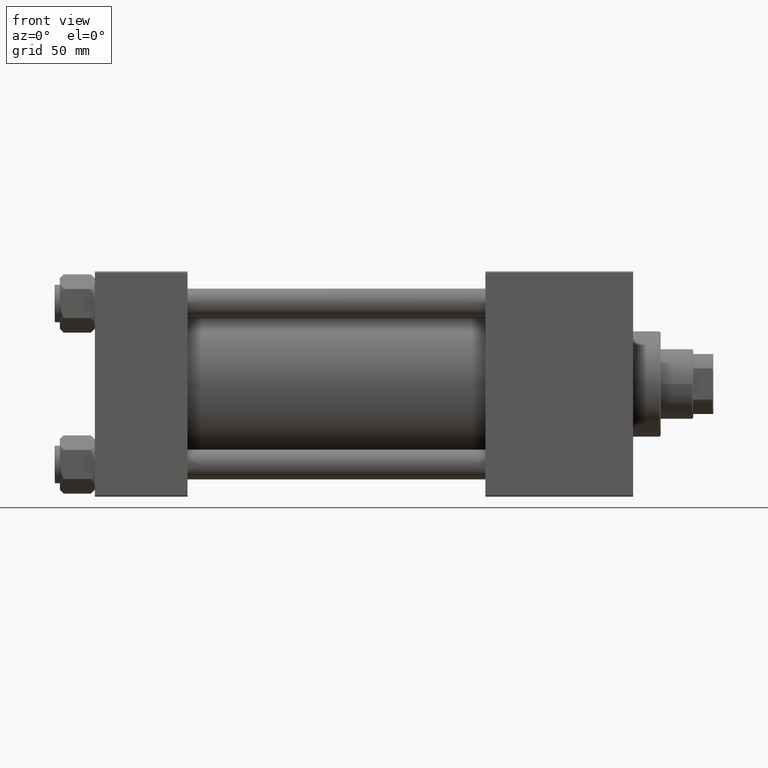
[diagram: clean part render]
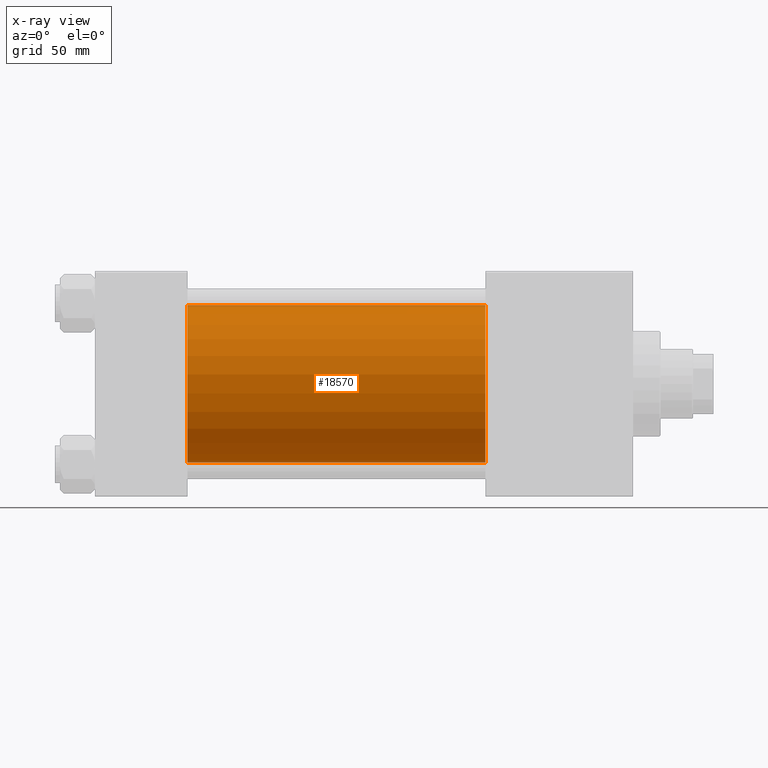
[diagram: x-ray — body ghosted, one internal face saturated and labeled with its STEP entity id]
A machine part, front view, then the same camera in x-ray: the body is ghosted and one INTERNAL B-rep face — a face not visible from any outside direction — is saturated and labeled: STEP entity #18570.
In plain terms, the highlighted cylindrical surface (partial cylindrical patch) has radius 31.5 mm, axis along (-1, -0, -0).
Its self-contained STEP definition (entity closure, byte-faithful):
#746 = CARTESIAN_POINT ( 'NONE',  ( 156.0000000000000000, -2.602085213965210642E-15, 0.000000000000000000 ) ) ;
#3876 = VECTOR ( 'NONE', #27879, 1000.000000000000000 ) ;
#4959 = CARTESIAN_POINT ( 'NONE',  ( 37.00000000000000000, -2.602085213965210642E-15, 0.000000000000000000 ) ) ;
#6831 = VECTOR ( 'NONE', #33689, 1000.000000000000000 ) ;
#9174 = CARTESIAN_POINT ( 'NONE',  ( 37.00000000000000000, 1.255552203348951850E-15, -31.50000000000000000 ) ) ;
#11012 = DIRECTION ( 'NONE',  ( -1.000000000000000000, -0.000000000000000000, -0.000000000000000000 ) ) ;
#11508 = AXIS2_PLACEMENT_3D ( 'NONE', #746, #39739, #47124 ) ;
#13948 = CIRCLE ( 'NONE', #11508, 31.50000000000000000 ) ;
#15760 = EDGE_CURVE ( 'NONE', #42108, #40489, #22805, .T. ) ;
#15865 = CYLINDRICAL_SURFACE ( 'NONE', #33211, 31.50000000000000000 ) ;
#15961 = DIRECTION ( 'NONE',  ( 1.000000000000000000, 0.000000000000000000, 0.000000000000000000 ) ) ;
#16307 = CIRCLE ( 'NONE', #27706, 31.50000000000000000 ) ;
#18570 = ADVANCED_FACE ( 'NONE', ( #45915 ), #15865, .F. ) ;
#18863 = ORIENTED_EDGE ( 'NONE', *, *, #15760, .T. ) ;
#20533 = DIRECTION ( 'NONE',  ( 0.000000000000000000, 0.000000000000000000, -1.000000000000000000 ) ) ;
#21232 = LINE ( 'NONE', #21486, #6831 ) ;
#21486 = CARTESIAN_POINT ( 'NONE',  ( 156.0000000000000000, -2.602085213965210642E-15, 31.50000000000000000 ) ) ;
#22181 = EDGE_CURVE ( 'NONE', #23649, #40489, #16307, .T. ) ;
#22256 = EDGE_LOOP ( 'NONE', ( #22961, #18863, #27390, #45306 ) ) ;
#22805 = LINE ( 'NONE', #31440, #3876 ) ;
#22961 = ORIENTED_EDGE ( 'NONE', *, *, #25867, .T. ) ;
#23416 = CARTESIAN_POINT ( 'NONE',  ( 37.00000000000000000, -2.602085213965210642E-15, 31.50000000000000000 ) ) ;
#23649 = VERTEX_POINT ( 'NONE', #23416 ) ;
#25867 = EDGE_CURVE ( 'NONE', #41285, #42108, #13948, .T. ) ;
#26569 = DIRECTION ( 'NONE',  ( 0.000000000000000000, 0.000000000000000000, 1.000000000000000000 ) ) ;
#27390 = ORIENTED_EDGE ( 'NONE', *, *, #22181, .F. ) ;
#27706 = AXIS2_PLACEMENT_3D ( 'NONE', #4959, #15961, #20533 ) ;
#27879 = DIRECTION ( 'NONE',  ( -1.000000000000000000, -0.000000000000000000, -0.000000000000000000 ) ) ;
#30516 = CARTESIAN_POINT ( 'NONE',  ( 156.0000000000000000, 1.255552203348951850E-15, -31.50000000000000000 ) ) ;
#31374 = CARTESIAN_POINT ( 'NONE',  ( 156.0000000000000000, -2.602085213965210642E-15, 0.000000000000000000 ) ) ;
#31440 = CARTESIAN_POINT ( 'NONE',  ( 156.0000000000000000, 1.255552203348951850E-15, -31.50000000000000000 ) ) ;
#33211 = AXIS2_PLACEMENT_3D ( 'NONE', #31374, #11012, #26569 ) ;
#33689 = DIRECTION ( 'NONE',  ( -1.000000000000000000, -0.000000000000000000, -0.000000000000000000 ) ) ;
#34407 = EDGE_CURVE ( 'NONE', #41285, #23649, #21232, .T. ) ;
#39739 = DIRECTION ( 'NONE',  ( 1.000000000000000000, 0.000000000000000000, 0.000000000000000000 ) ) ;
#40489 = VERTEX_POINT ( 'NONE', #9174 ) ;
#41285 = VERTEX_POINT ( 'NONE', #43897 ) ;
#42108 = VERTEX_POINT ( 'NONE', #30516 ) ;
#43897 = CARTESIAN_POINT ( 'NONE',  ( 156.0000000000000000, -2.602085213965210642E-15, 31.50000000000000000 ) ) ;
#45306 = ORIENTED_EDGE ( 'NONE', *, *, #34407, .F. ) ;
#45915 = FACE_OUTER_BOUND ( 'NONE', #22256, .T. ) ;
#47124 = DIRECTION ( 'NONE',  ( 0.000000000000000000, 0.000000000000000000, -1.000000000000000000 ) ) ;